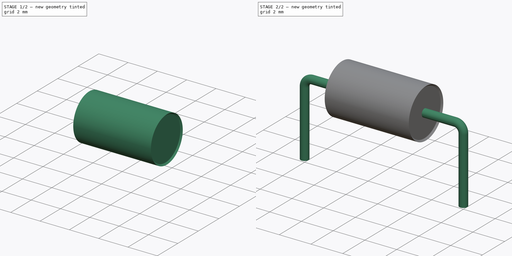
[diagram: build sequence overview — one tinted view per stage of 2, left to right]
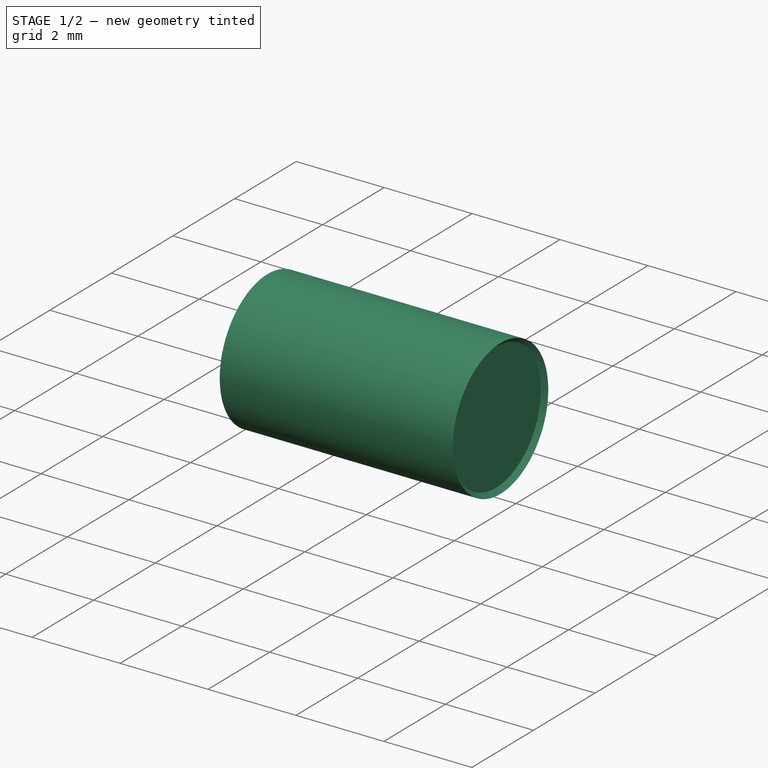
[diagram: stage 1 of 2 — iso view after this stage's code; geometry added in this stage tinted green]
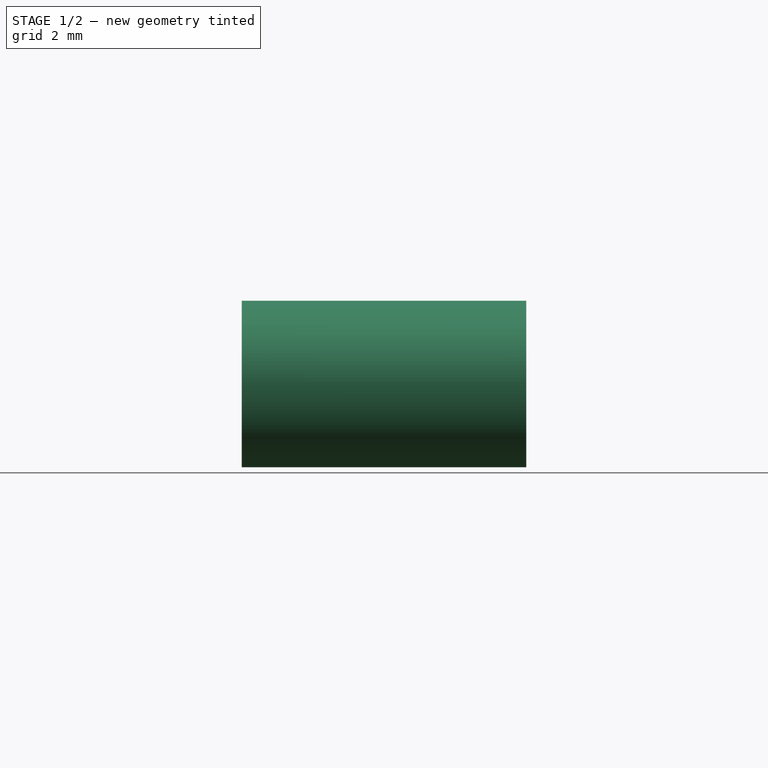
[diagram: stage 1 of 2 — front view after this stage's code; geometry added in this stage tinted green]
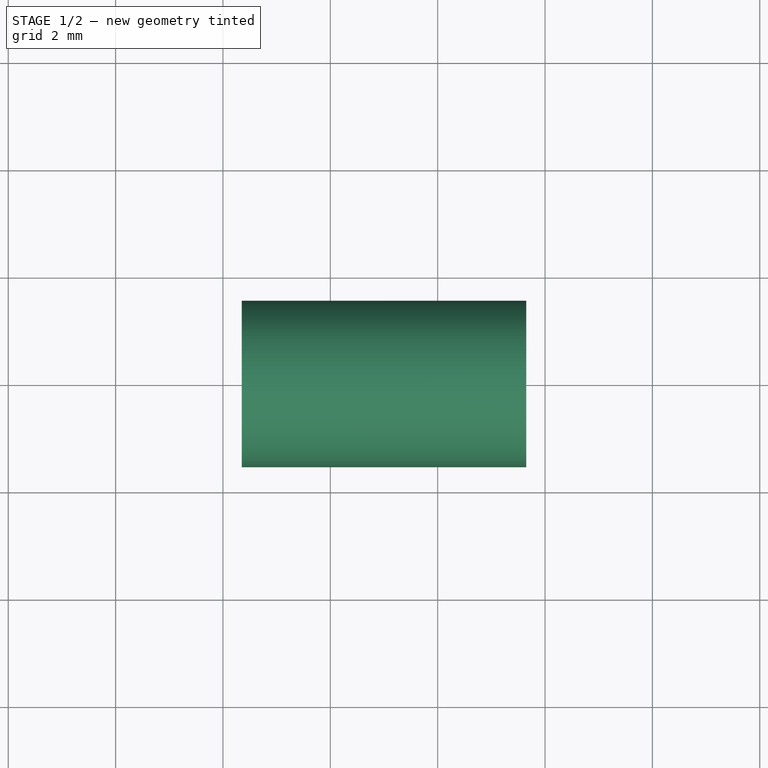
[diagram: stage 1 of 2 — top view after this stage's code; geometry added in this stage tinted green]
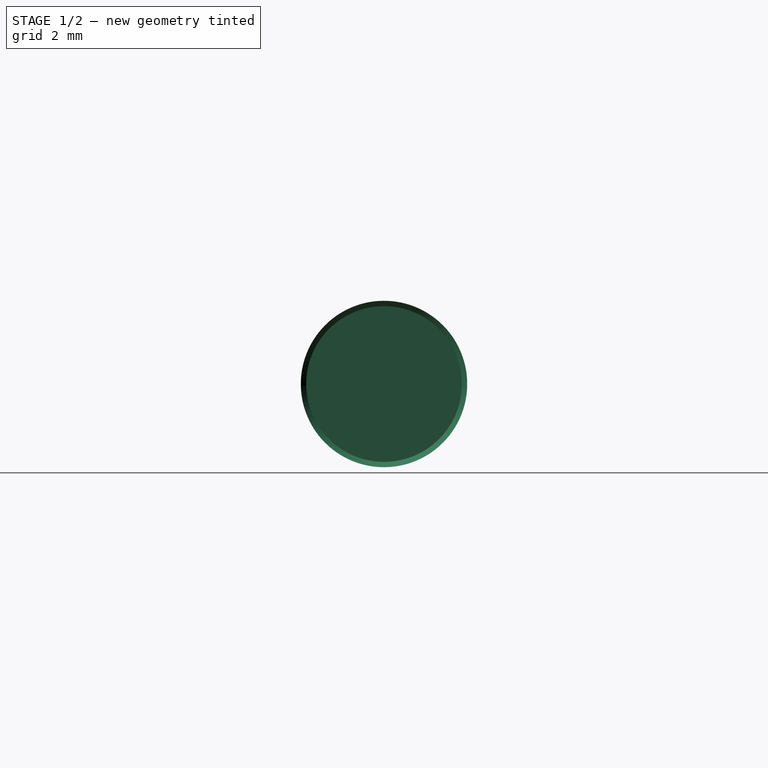
[diagram: stage 1 of 2 — right view after this stage's code; geometry added in this stage tinted green]
FCSTD DOCUMENT  (FreeCAD 0.16R6703 (Git))
Label: C_Axial_L5.1mm_D3.1mm_P10.00mm_Horizontal
License: All rights reserved
LicenseURL: http://en.wikipedia.org/wiki/All_rights_reserved
objects: Sketcher::SketchObject×3, Spreadsheet::Sheet×1, Part::Sweep×1, PartDesign::Revolution×1
note: 6 computed .brp shape members not serialized (recipe doc carries the construction recipe); baked Part::Feature solids carry a one-line shape summary decoded from their .brp

FEATURE [PartDesign::Revolution] Revolution
  Angle = 360
  Axis = (5.76242,0,0)
  Base = (7.6118,0,1.65)
  Placement = pos=(0,0,0) rot=(1,0,0;1.5708rad)
  ReferenceAxis = -> Sketch002 [Axis1]
  Reversed = true
  Sketch = -> Sketch002
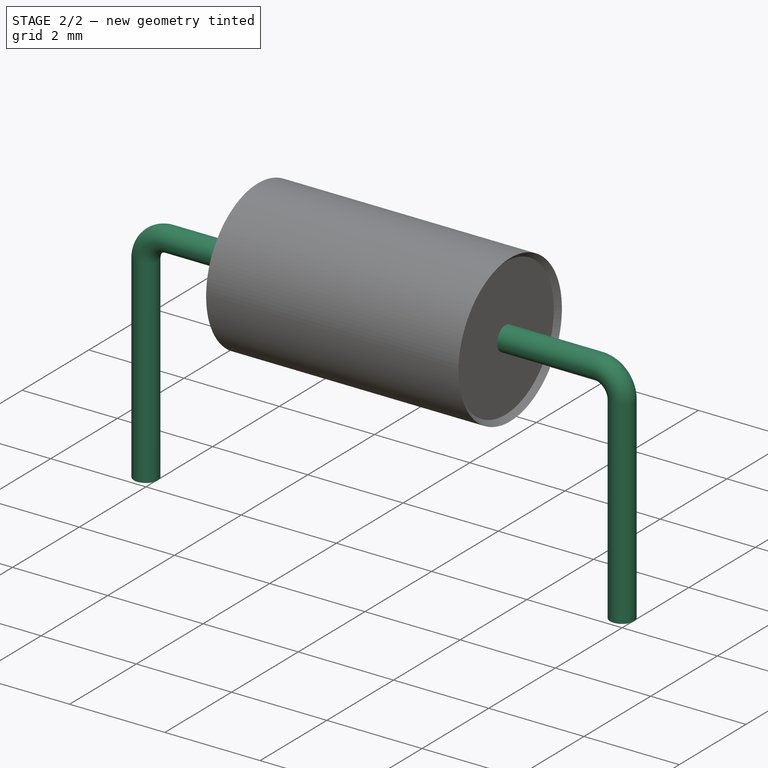
[diagram: stage 2 of 2 — iso view after this stage's code; geometry added in this stage tinted green]
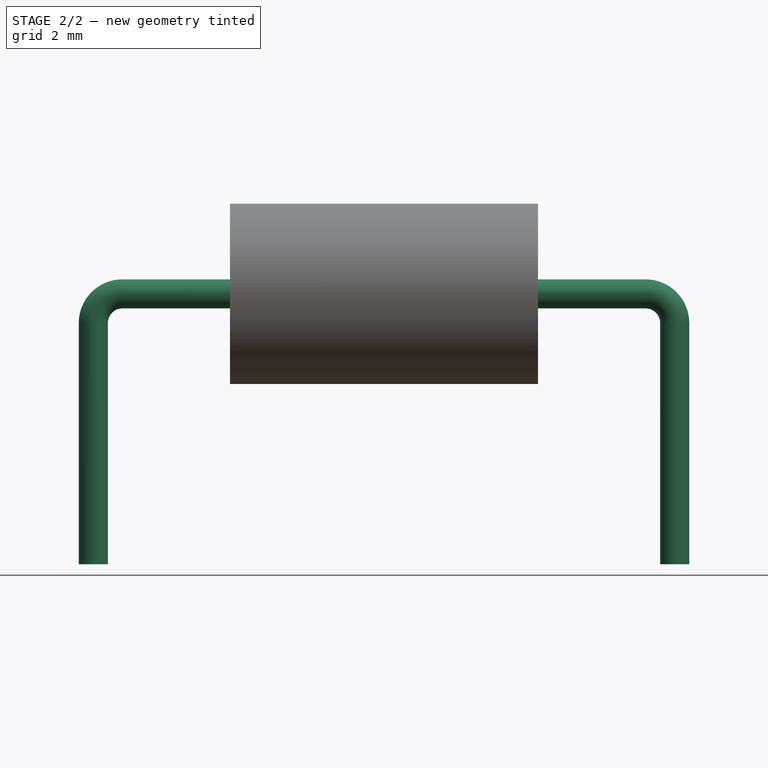
[diagram: stage 2 of 2 — front view after this stage's code; geometry added in this stage tinted green]
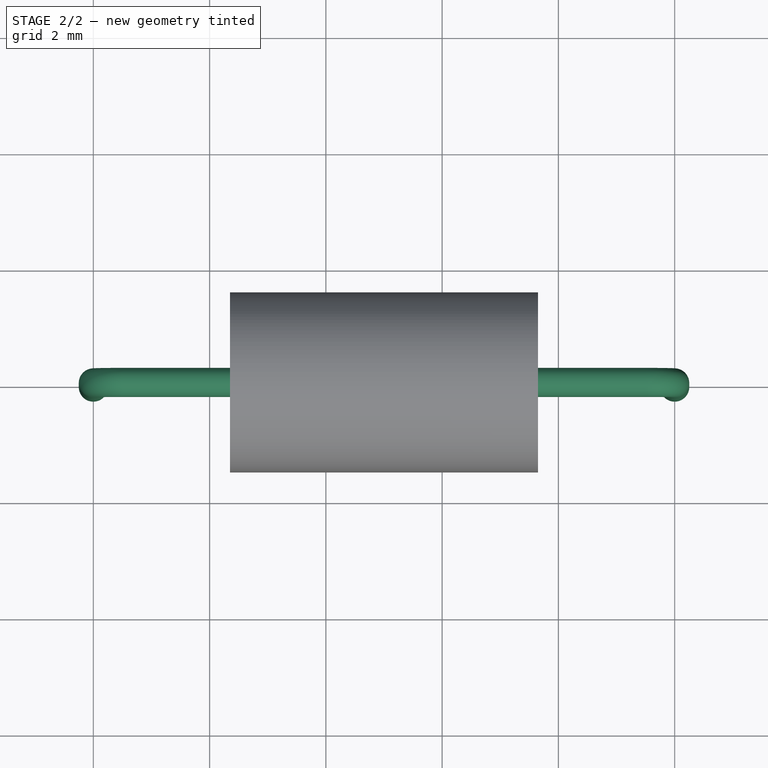
[diagram: stage 2 of 2 — top view after this stage's code; geometry added in this stage tinted green]
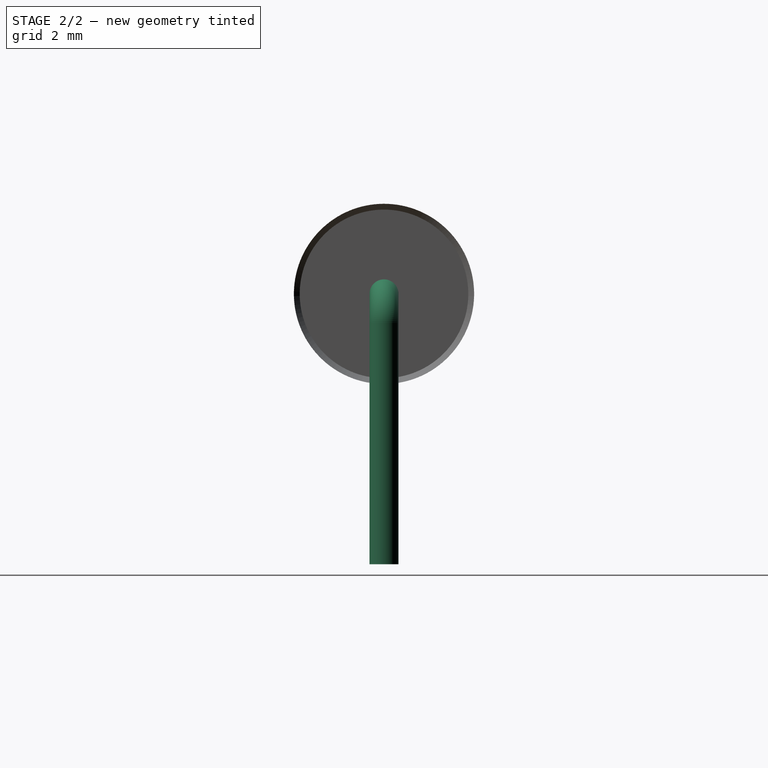
[diagram: stage 2 of 2 — right view after this stage's code; geometry added in this stage tinted green]
FEATURE [Sketcher::SketchObject] Sketch001
  Placement = pos=(0,0,0) rot=(1,0,0;1.5708rad)
  expr: Constraints[15] = dimensions.d_wire
  expr: Constraints[20] = dimensions.d_wire
  expr: Constraints[18] = dimensions.d / 2 + 0.1
  expr: Constraints[12] = dimensions.RM
  expr: Constraints[7] = dimensions.d_wire
  sketch-geometry (7):
    g0: LineSegment StartX=0 StartY=-3 StartZ=0 EndX=0 EndY=1.15 EndZ=0
    g1: ArcOfCircle CenterX=0.5 CenterY=1.15 CenterZ=0 NormalX=0 NormalY=0 NormalZ=1 Radius=0.5 StartAngle=1.57081 EndAngle=3.14159
    g2: LineSegment [constr] StartX=0 StartY=1.15 StartZ=0 EndX=0.5 EndY=1.15 EndZ=0
    g3: LineSegment [constr] StartX=0.5 StartY=1.15 StartZ=0 EndX=0.5 EndY=1.65 EndZ=0
    g4: LineSegment StartX=0.499991 StartY=1.65 StartZ=0 EndX=9.5 EndY=1.65 EndZ=0
    g5: LineSegment StartX=10 StartY=1.15 StartZ=0 EndX=10 EndY=-3 EndZ=0
    g6: ArcOfCircle CenterX=9.5 CenterY=1.15 CenterZ=0 NormalX=0 NormalY=0 NormalZ=1 Radius=0.5 StartAngle=0 EndAngle=1.5708
  constraints (23):
    c: Vertical(g0)
    c: Coincident(g1,g0)
    c: Coincident(g2,g0)
    c: Coincident(g2,g1)
    c: Horizontal(g2)
    c: Coincident(g3,g1)
    c: Vertical(g3)
    c: DistanceY(g3,g3) = 0.5
    c: Coincident(g4,g1)
    c: Horizontal(g4)
    c: Vertical(g5)
    c: Equal(g5,g0)
    c: DistanceX(g-1,g5) = 10
    c: Coincident(g6,g4)
    c: Coincident(g6,g5)
    c: DistanceX(g6,g5) = 0.5
    c: PointOnObject(g0,g-2)
    c: DistanceY(g0,g-1) = 3
    c: DistanceY(g-1,g1) = 1.65
    c: DistanceY(g0,g5) = 0
    c: DistanceX(g0,g1) = 0.5
    c: DistanceX(g6,g4) = 0
    c: DistanceY(g6,g5) = 0
FEATURE [Sketcher::SketchObject] Sketch002  label="Axis0"
  Placement = pos=(0,0,0) rot=(1,0,0;1.5708rad)
  expr: Constraints[0] = dimensions.d / 2
  expr: Constraints[18] = dimensions.L
  expr: Constraints[3] = dimensions.d / 2 + 0.1
  expr: Constraints[2] = (dimensions.RM - dimensions.L) / 2
  expr: Constraints[6] = dimensions.L + 0.2
  sketch-geometry (8):
    g0: LineSegment StartX=2.35 StartY=3.2 StartZ=0 EndX=7.65 EndY=3.2 EndZ=0
    g1: LineSegment [constr] StartX=106.464 StartY=-65.1216 StartZ=0 EndX=-91.2241 EndY=-65.1216 EndZ=0
    g2: LineSegment [constr] StartX=7.6118 StartY=1.65 StartZ=0 EndX=13.3742 EndY=1.65 EndZ=0
    g3: LineSegment StartX=2.45 StartY=1.65 StartZ=0 EndX=7.55 EndY=1.65 EndZ=0
    g4: LineSegment StartX=2.45 StartY=1.65 StartZ=0 EndX=2.45 EndY=3.1 EndZ=0
    g5: LineSegment StartX=2.45 StartY=3.1 StartZ=0 EndX=2.35 EndY=3.2 EndZ=0
    g6: LineSegment StartX=7.55 StartY=1.65 StartZ=0 EndX=7.55 EndY=3.1 EndZ=0
    g7: LineSegment StartX=7.55 StartY=3.1 StartZ=0 EndX=7.65 EndY=3.2 EndZ=0
  constraints (20):
    c: DistanceY(g3,g0) = 1.55
    c: Horizontal(g0)
    c: DistanceX(g-1,g3) = 2.45
    c: DistanceY(g-1,g3) = 1.65
    c: Horizontal(g2)
    c: Horizontal(g3)
    c: DistanceX(g0,g0) = 5.3
    c: DistanceX(g0,g3) = 0.1
    c: Coincident(g4,g3)
    c: Vertical(g4)
    c: Coincident(g5,g4)
    c: Coincident(g5,g0)
    c: Coincident(g6,g3)
    c: Vertical(g6)
    c: Coincident(g7,g0)
    c: DistanceY(g6,g0) = 0.1
    c: Coincident(g7,g6)
    c: DistanceY(g4,g0) = 0.1
    c: DistanceX(g3,g3) = 5.1
    c: PointOnObject(g2,g3)
FEATURE [Spreadsheet::Sheet] Spreadsheet  label="dimensions"
  cells = A1=L; B1(L)=5.1; A2=d; B2(d)=3.1; C2=0; A3=RM; B3(RM)=10; C3=0; A4=d_wire; B4(d_wire)=0.5
FEATURE [Sketcher::SketchObject] Sketch
  Placement = pos=(0,0,-2) rot=(0,0,1;0rad)
  expr: Constraints[1] = dimensions.d_wire / 2
  sketch-geometry (1):
    g0: Circle CenterX=0 CenterY=0 CenterZ=0 NormalX=0 NormalY=0 NormalZ=1 Radius=0.25
  constraints (2):
    c: Coincident(g0,g-1)
    c: Radius(g0) = 0.25
FEATURE [Part::Sweep] Sweep
  Frenet = false
  Sections = -> [Sketch]
  Solid = true
  Spine = -> Sketch001
  Transition = 1
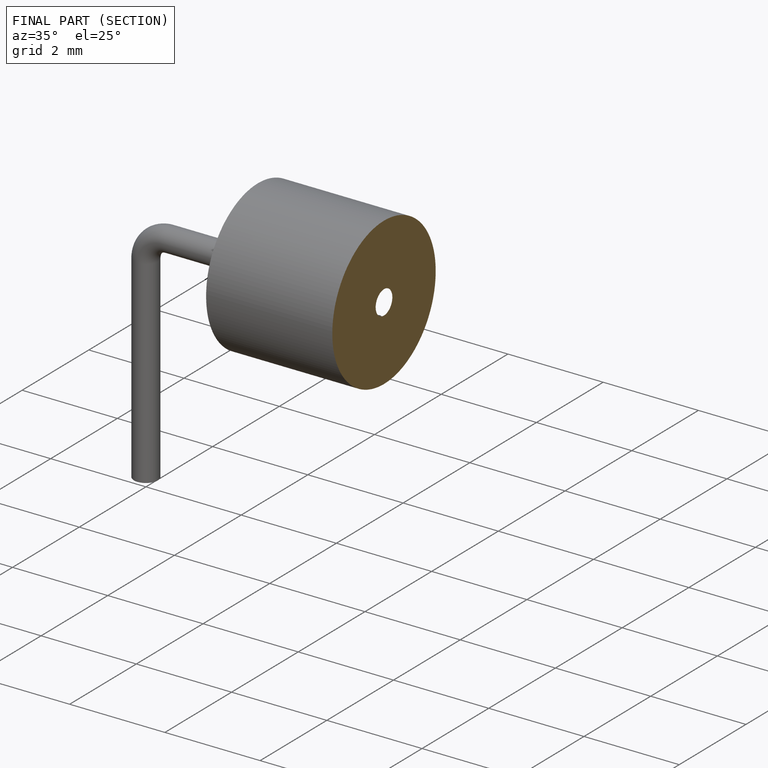
[diagram: finished part — half-section view (interior)]
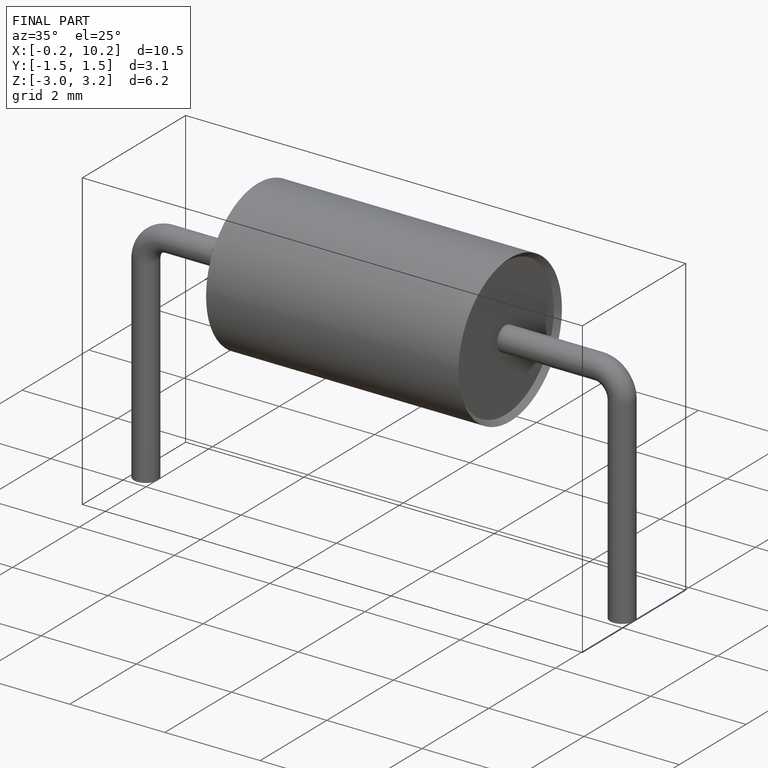
[diagram: finished part — iso view with bounding-box wireframe]
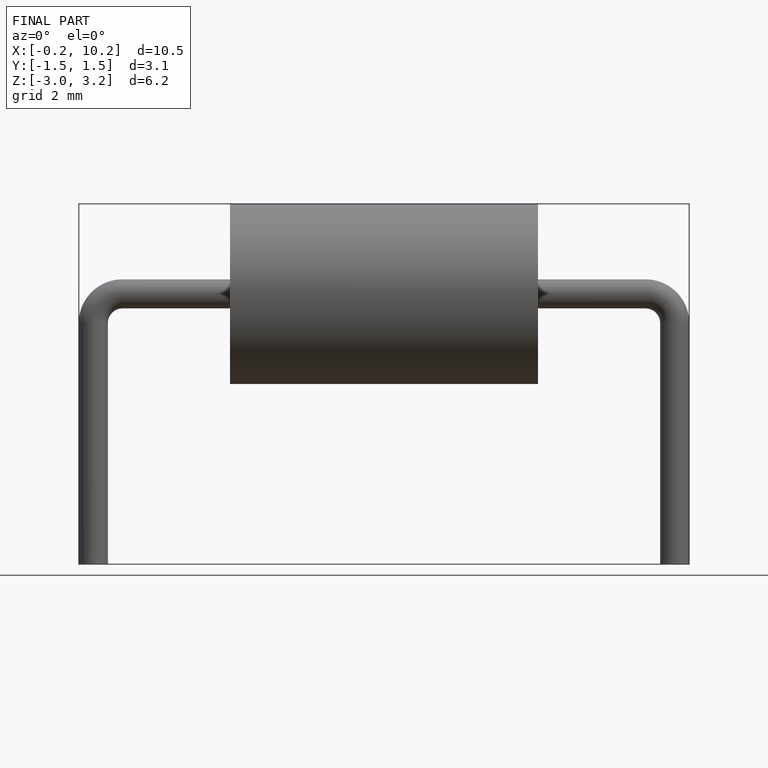
[diagram: finished part — front view with bounding-box wireframe]
